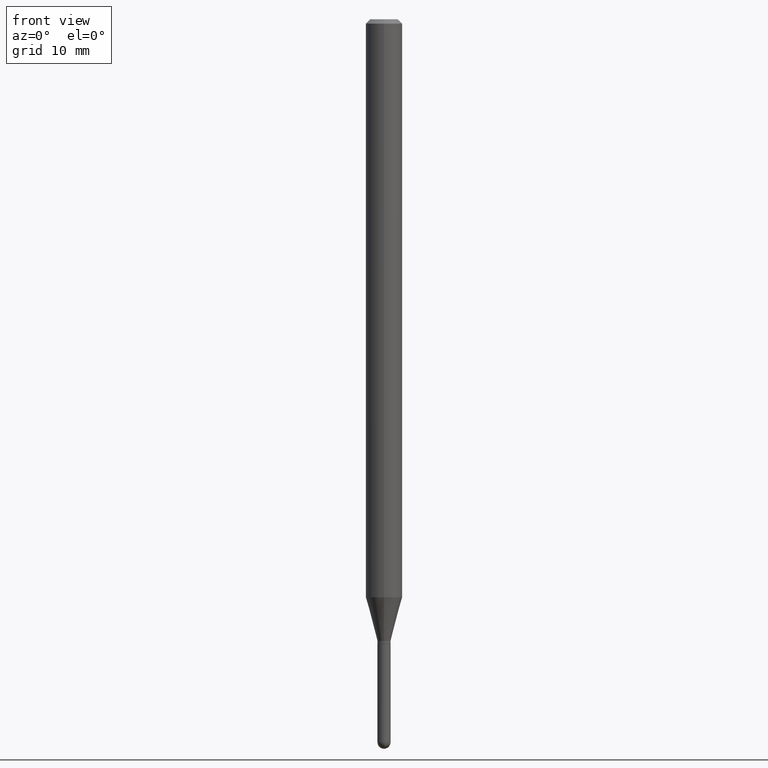
[diagram: clean part render]
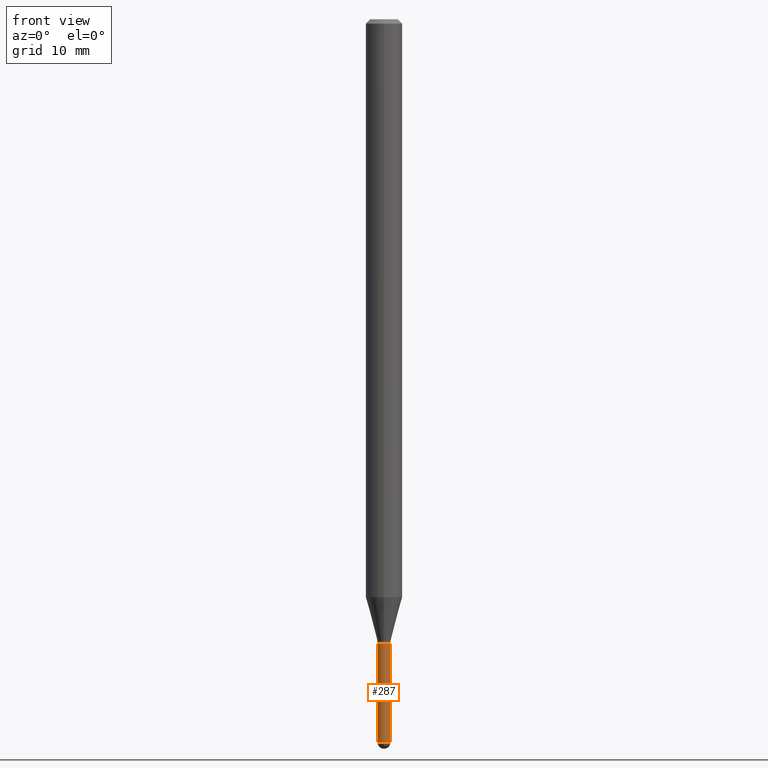
[diagram: same view with one face highlighted and labeled with its STEP entity id]
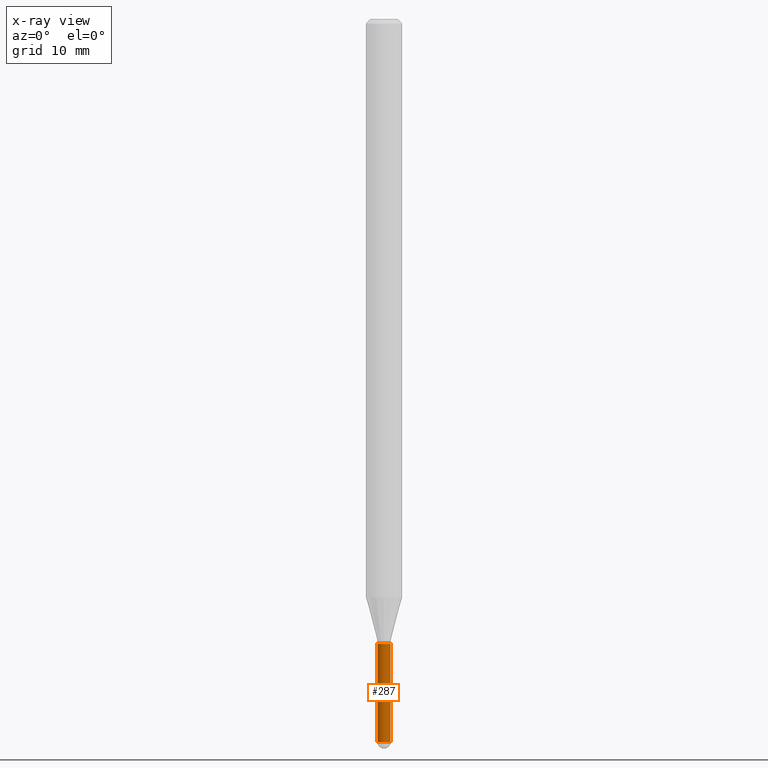
[diagram: x-ray of the same camera — body ghosted, the highlighted face saturated]
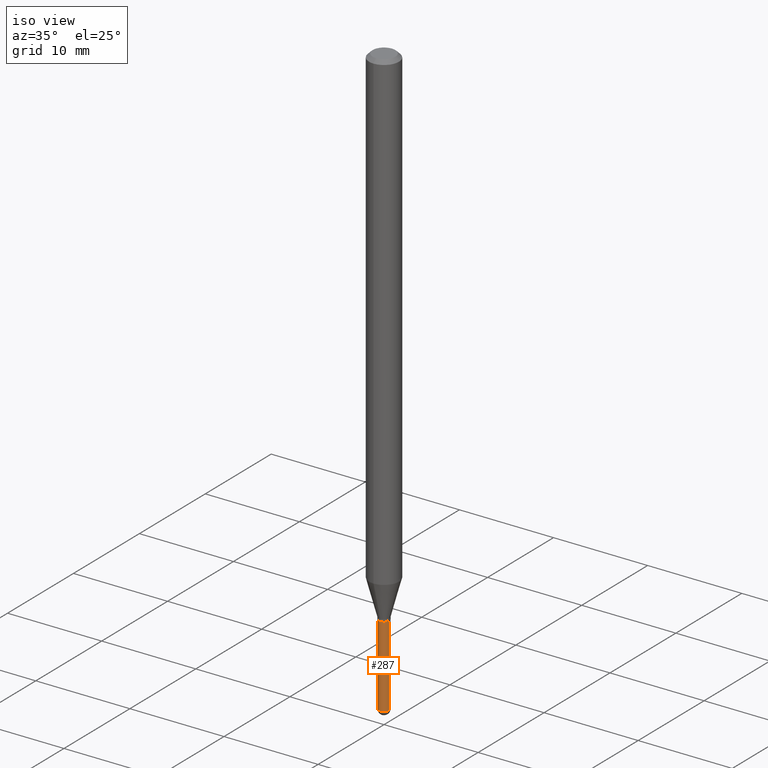
[diagram: same view with one face highlighted and labeled with its STEP entity id]
A machine part, front view. The second image highlights one B-rep face of the part: STEP entity #287.
The next image is the same camera in x-ray: the body ghosted, the highlighted face saturated — about 0% of this face is hidden behind the body in this view.
A second angle (iso view) of the same face is appended — the face is thin or edge-on in the first view.
In plain terms, the highlighted cylindrical surface (edge-blend (fillet) strip) has radius 0.5715 mm, axis along (-0, 0, 1).
Its self-contained STEP definition (entity closure, byte-faithful):
#21 = CARTESIAN_POINT ( 'NONE',  ( 5.233303245236192586E-29, -7.471770065124331886E-15, -2.140000000000000124 ) ) ;
#44 = CARTESIAN_POINT ( 'NONE',  ( 6.058648967323676636E-29, -8.650145016983893338E-15, -2.477500000000000036 ) ) ;
#65 = ORIENTED_EDGE ( 'NONE', *, *, #346, .F. ) ;
#69 = VERTEX_POINT ( 'NONE', #162 ) ;
#74 = DIRECTION ( 'NONE',  ( -2.445468806185136597E-29, 3.491481338843145583E-15, 1.000000000000000000 ) ) ;
#75 = ORIENTED_EDGE ( 'NONE', *, *, #475, .T. ) ;
#76 = CARTESIAN_POINT ( 'NONE',  ( 6.058648967323676636E-29, -8.650145016983893338E-15, -2.477500000000000036 ) ) ;
#93 = EDGE_CURVE ( 'NONE', #226, #69, #108, .T. ) ;
#96 = AXIS2_PLACEMENT_3D ( 'NONE', #459, #74, #468 ) ;
#108 = CIRCLE ( 'NONE', #437, 0.02249999999999999570 ) ;
#113 = LINE ( 'NONE', #399, #429 ) ;
#117 = CARTESIAN_POINT ( 'NONE',  ( 0.02249999999999999917, -7.628886725372273518E-15, -2.140000000000000124 ) ) ;
#121 = ORIENTED_EDGE ( 'NONE', *, *, #417, .T. ) ;
#144 = AXIS2_PLACEMENT_3D ( 'NONE', #21, #401, #314 ) ;
#161 = FACE_OUTER_BOUND ( 'NONE', #387, .T. ) ;
#162 = CARTESIAN_POINT ( 'NONE',  ( -1.598721155459620894E-16, -0.02250000000000867278, -2.477500000000000036 ) ) ;
#188 = VERTEX_POINT ( 'NONE', #446 ) ;
#191 = DIRECTION ( 'NONE',  ( -2.445468806185136597E-29, 3.491481338843145583E-15, 1.000000000000000000 ) ) ;
#203 = DIRECTION ( 'NONE',  ( -2.445468806185136877E-29, 3.491481338843145188E-15, 1.000000000000000000 ) ) ;
#206 = DIRECTION ( 'NONE',  ( -2.445468806185136597E-29, 3.491481338843145583E-15, 1.000000000000000000 ) ) ;
#217 = DIRECTION ( 'NONE',  ( -2.445468806185136877E-29, 3.491481338843145188E-15, 1.000000000000000000 ) ) ;
#226 = VERTEX_POINT ( 'NONE', #312 ) ;
#233 = CYLINDRICAL_SURFACE ( 'NONE', #96, 0.02249999999999999917 ) ;
#277 = DIRECTION ( 'NONE',  ( 1.000000000000000000, -6.982962677686269866E-15, 0.000000000000000000 ) ) ;
#287 = ADVANCED_FACE ( 'NONE', ( #161 ), #233, .T. ) ;
#296 = CIRCLE ( 'NONE', #144, 0.02249999999999999917 ) ;
#312 = CARTESIAN_POINT ( 'NONE',  ( -0.02249999999999999570, -7.901085425508090322E-15, -2.477500000000000036 ) ) ;
#314 = DIRECTION ( 'NONE',  ( 1.000000000000000000, -6.982962677686269077E-15, 0.000000000000000000 ) ) ;
#341 = ORIENTED_EDGE ( 'NONE', *, *, #93, .T. ) ;
#346 = EDGE_CURVE ( 'NONE', #226, #188, #378, .T. ) ;
#365 = DIRECTION ( 'NONE',  ( 1.000000000000000000, -6.982962677686269866E-15, 0.000000000000000000 ) ) ;
#378 = LINE ( 'NONE', #491, #391 ) ;
#384 = AXIS2_PLACEMENT_3D ( 'NONE', #76, #191, #277 ) ;
#387 = EDGE_LOOP ( 'NONE', ( #65, #341, #75, #121, #490 ) ) ;
#391 = VECTOR ( 'NONE', #217, 39.37007874015748143 ) ;
#399 = CARTESIAN_POINT ( 'NONE',  ( 0.02249999999999999917, -1.571166602479409911E-16, 1.097139774554085483E-30 ) ) ;
#401 = DIRECTION ( 'NONE',  ( -2.445468806185136597E-29, 3.491481338843145583E-15, 1.000000000000000000 ) ) ;
#408 = EDGE_CURVE ( 'NONE', #188, #501, #296, .T. ) ;
#417 = EDGE_CURVE ( 'NONE', #466, #501, #113, .T. ) ;
#426 = CARTESIAN_POINT ( 'NONE',  ( 0.02249999999999999570, -8.218074201302054244E-15, -2.477500000000000036 ) ) ;
#429 = VECTOR ( 'NONE', #203, 39.37007874015748143 ) ;
#437 = AXIS2_PLACEMENT_3D ( 'NONE', #44, #206, #365 ) ;
#446 = CARTESIAN_POINT ( 'NONE',  ( -0.02249999999999999917, -7.901085425508090322E-15, -2.140000000000000124 ) ) ;
#459 = CARTESIAN_POINT ( 'NONE',  ( 0.000000000000000000, 0.000000000000000000, 0.000000000000000000 ) ) ;
#466 = VERTEX_POINT ( 'NONE', #426 ) ;
#468 = DIRECTION ( 'NONE',  ( 1.000000000000000000, -6.982962677686266711E-15, 4.876176775795935793E-29 ) ) ;
#475 = EDGE_CURVE ( 'NONE', #69, #466, #489, .T. ) ;
#489 = CIRCLE ( 'NONE', #384, 0.02249999999999999570 ) ;
#490 = ORIENTED_EDGE ( 'NONE', *, *, #408, .F. ) ;
#491 = CARTESIAN_POINT ( 'NONE',  ( -0.02249999999999999917, 1.598721155460225359E-16, -1.106760395307353780E-30 ) ) ;
#501 = VERTEX_POINT ( 'NONE', #117 ) ;